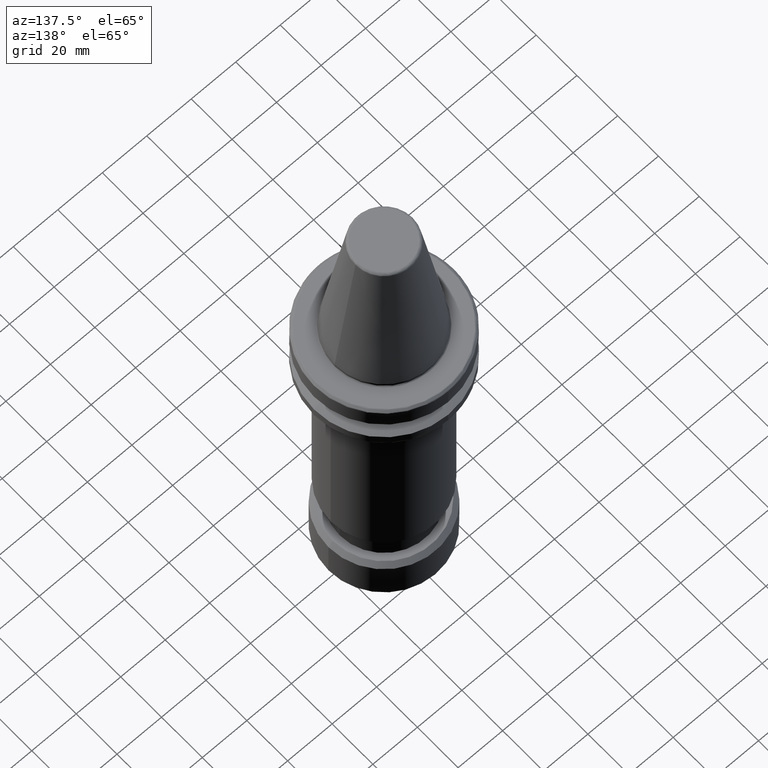
[diagram: clean part render]
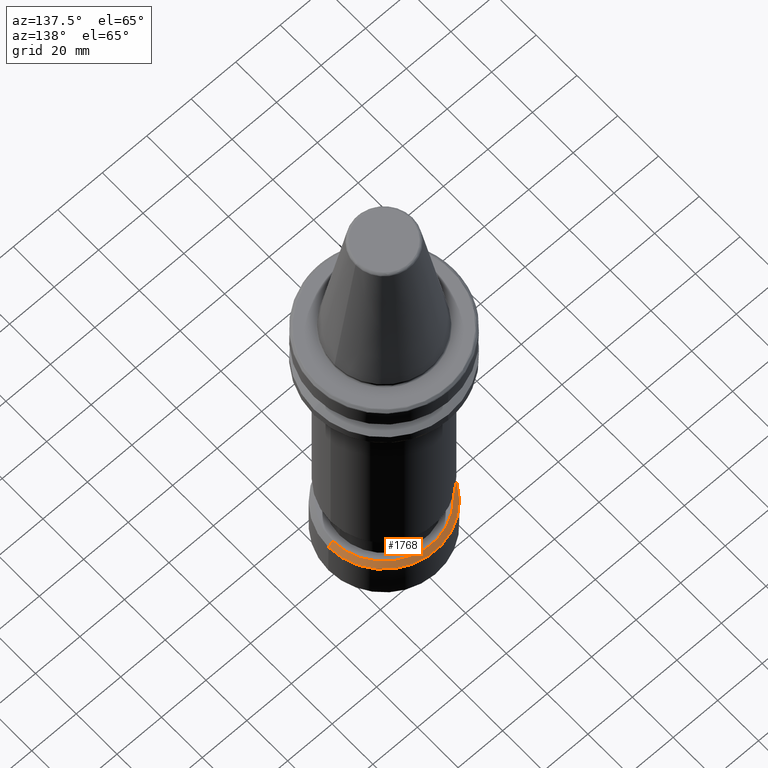
[diagram: same view with one face highlighted and labeled with its STEP entity id]
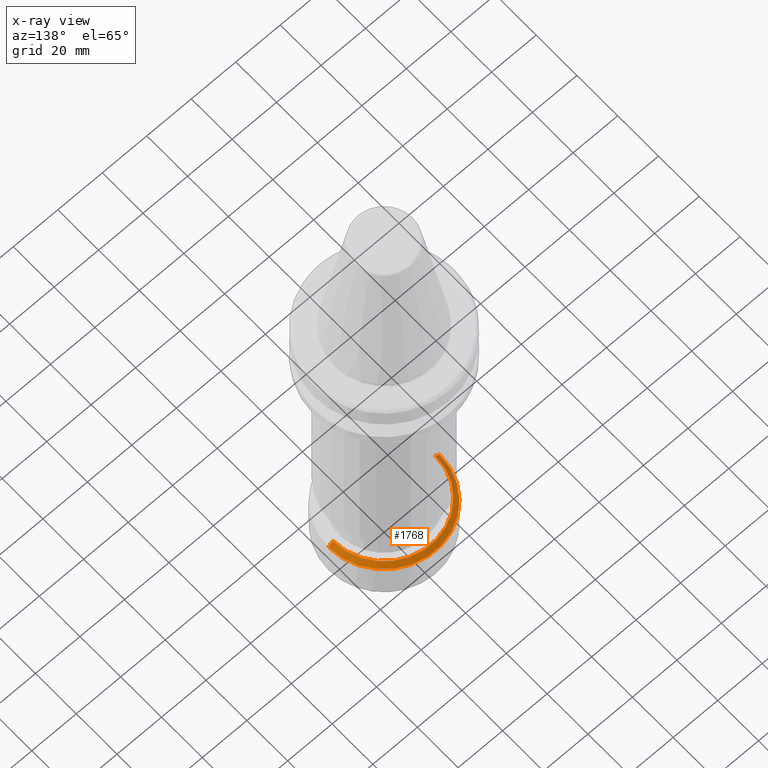
[diagram: x-ray of the same camera — body ghosted, the highlighted face saturated]
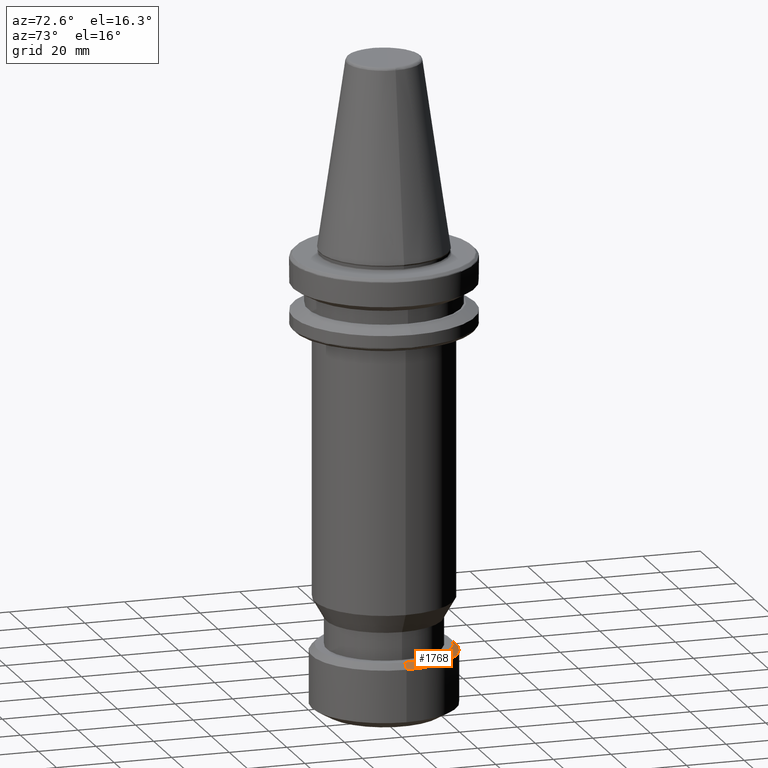
[diagram: same view with one face highlighted and labeled with its STEP entity id]
A machine part, auxiliary view. The second image highlights one B-rep face of the part: STEP entity #1768.
The next image is the same camera in x-ray: the body ghosted, the highlighted face saturated — about 11% of this face is hidden behind the body in this view.
A second angle (auxiliary view) of the same face is appended — the face is thin or edge-on in the first view.
In plain terms, the highlighted conical surface has half-angle 45 deg.
Its self-contained STEP definition (entity closure, byte-faithful):
#16 = VECTOR ( 'NONE', #238, 1000.000000000000000 ) ;
#28 = DIRECTION ( 'NONE',  ( -1.000000000000000000, 0.0000000000000000000, 0.0000000000000000000 ) ) ;
#153 = VERTEX_POINT ( 'NONE', #2551 ) ;
#161 = EDGE_CURVE ( 'NONE', #2342, #153, #2345, .T. ) ;
#193 = VERTEX_POINT ( 'NONE', #2382 ) ;
#233 = DIRECTION ( 'NONE',  ( -0.0000000000000000000, -0.0000000000000000000, 1.000000000000000000 ) ) ;
#238 = DIRECTION ( 'NONE',  ( 0.7071067811865474600, 8.659560562354931600E-017, -0.7071067811865475700 ) ) ;
#263 = CARTESIAN_POINT ( 'NONE',  ( 23.00000000000000000, 2.816687638038912400E-015, -137.0000000000000000 ) ) ;
#342 = LINE ( 'NONE', #263, #16 ) ;
#521 = AXIS2_PLACEMENT_3D ( 'NONE', #2306, #2330, #2338 ) ;
#747 = EDGE_CURVE ( 'NONE', #2640, #193, #2075, .T. ) ;
#750 = CARTESIAN_POINT ( 'NONE',  ( 0.0000000000000000000, 0.0000000000000000000, -137.0000000000000000 ) ) ;
#824 = DIRECTION ( 'NONE',  ( -0.7071067811865474600, 0.0000000000000000000, -0.7071067811865475700 ) ) ;
#853 = CARTESIAN_POINT ( 'NONE',  ( -23.00000000000000000, 0.0000000000000000000, -137.0000000000000000 ) ) ;
#937 = CARTESIAN_POINT ( 'NONE',  ( 25.00000000000000000, 3.061616997868383000E-015, -139.0000000000000000 ) ) ;
#1027 = DIRECTION ( 'NONE',  ( 0.0000000000000000000, 0.0000000000000000000, 1.000000000000000000 ) ) ;
#1176 = FACE_OUTER_BOUND ( 'NONE', #2682, .T. ) ;
#1199 = CARTESIAN_POINT ( 'NONE',  ( 0.0000000000000000000, 0.0000000000000000000, -139.0000000000000000 ) ) ;
#1220 = DIRECTION ( 'NONE',  ( 1.000000000000000000, 0.0000000000000000000, 0.0000000000000000000 ) ) ;
#1323 = EDGE_CURVE ( 'NONE', #2342, #2640, #342, .T. ) ;
#1411 = CONICAL_SURFACE ( 'NONE', #521, 23.00000000000000000, 0.7853981633974482800 ) ;
#1454 = LINE ( 'NONE', #853, #2346 ) ;
#1768 = ADVANCED_FACE ( 'NONE', ( #1176 ), #1411, .T. ) ;
#1971 = ORIENTED_EDGE ( 'NONE', *, *, #1323, .T. ) ;
#2026 = CARTESIAN_POINT ( 'NONE',  ( 23.00000000000000000, 2.939152317953647900E-015, -137.0000000000000000 ) ) ;
#2075 = CIRCLE ( 'NONE', #2202, 25.00000000000000000 ) ;
#2202 = AXIS2_PLACEMENT_3D ( 'NONE', #1199, #1027, #1220 ) ;
#2306 = CARTESIAN_POINT ( 'NONE',  ( 0.0000000000000000000, 0.0000000000000000000, -137.0000000000000000 ) ) ;
#2330 = DIRECTION ( 'NONE',  ( 0.0000000000000000000, 0.0000000000000000000, -1.000000000000000000 ) ) ;
#2338 = DIRECTION ( 'NONE',  ( -1.000000000000000000, 0.0000000000000000000, 0.0000000000000000000 ) ) ;
#2342 = VERTEX_POINT ( 'NONE', #2026 ) ;
#2345 = CIRCLE ( 'NONE', #3412, 23.00000000000000000 ) ;
#2346 = VECTOR ( 'NONE', #824, 1000.000000000000000 ) ;
#2382 = CARTESIAN_POINT ( 'NONE',  ( -25.00000000000000000, 0.0000000000000000000, -139.0000000000000000 ) ) ;
#2551 = CARTESIAN_POINT ( 'NONE',  ( -23.00000000000000000, 0.0000000000000000000, -137.0000000000000000 ) ) ;
#2618 = ORIENTED_EDGE ( 'NONE', *, *, #747, .T. ) ;
#2640 = VERTEX_POINT ( 'NONE', #937 ) ;
#2682 = EDGE_LOOP ( 'NONE', ( #2764, #1971, #2618, #3211 ) ) ;
#2715 = EDGE_CURVE ( 'NONE', #153, #193, #1454, .T. ) ;
#2764 = ORIENTED_EDGE ( 'NONE', *, *, #161, .F. ) ;
#3211 = ORIENTED_EDGE ( 'NONE', *, *, #2715, .F. ) ;
#3412 = AXIS2_PLACEMENT_3D ( 'NONE', #750, #233, #28 ) ;